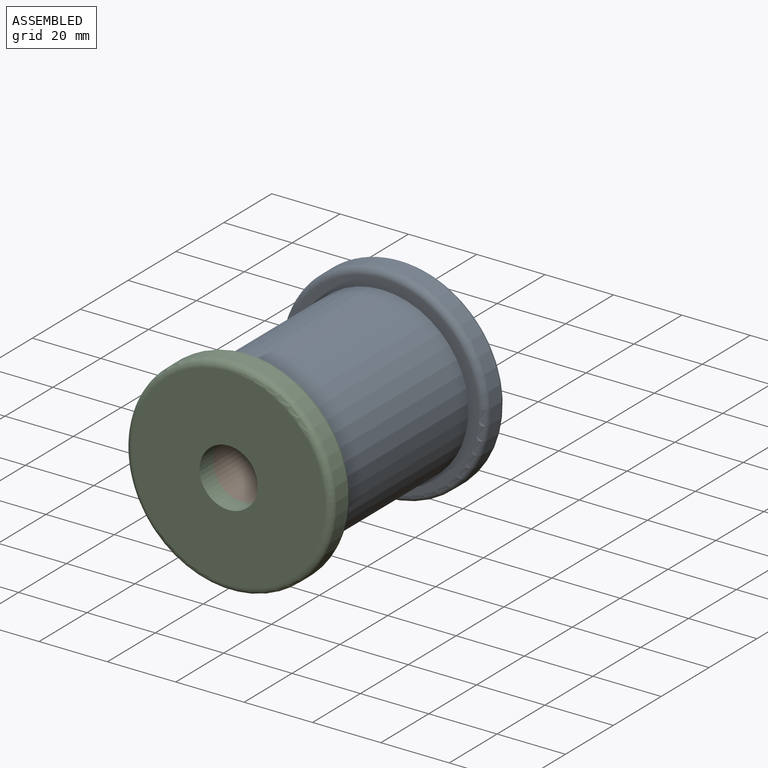
[diagram: assembled view]
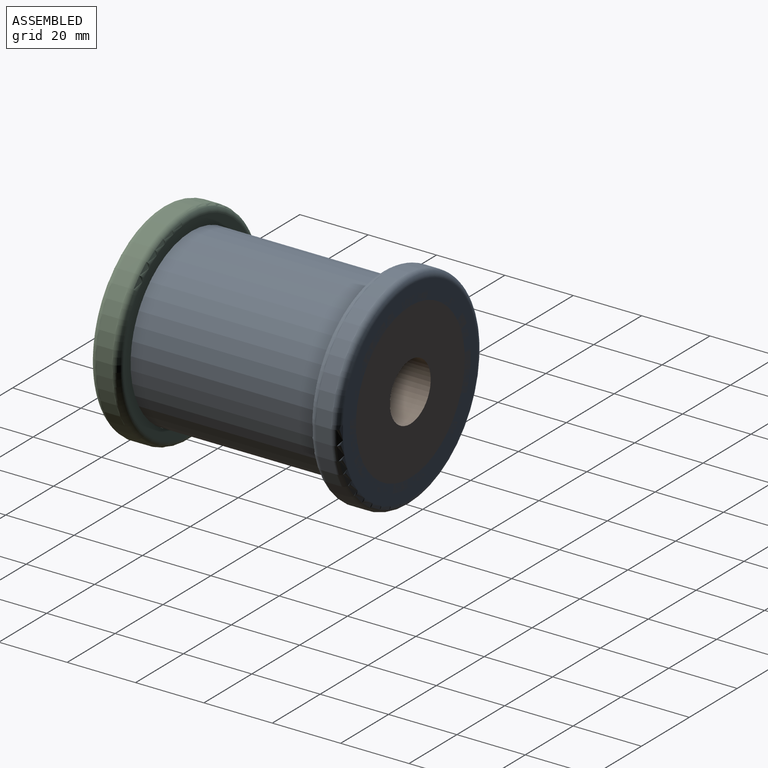
[diagram: assembled view, second angle]
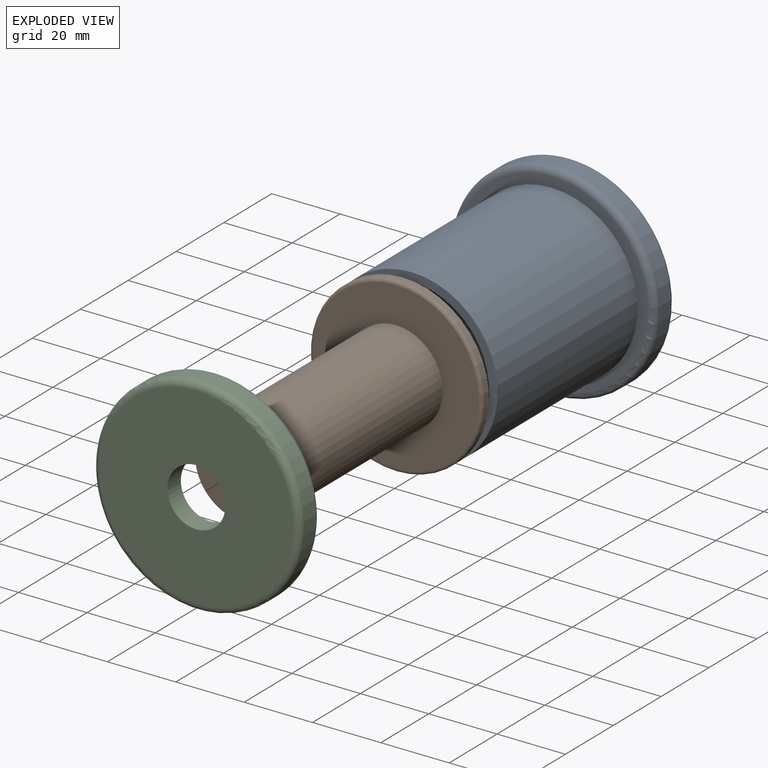
[diagram: exploded view]
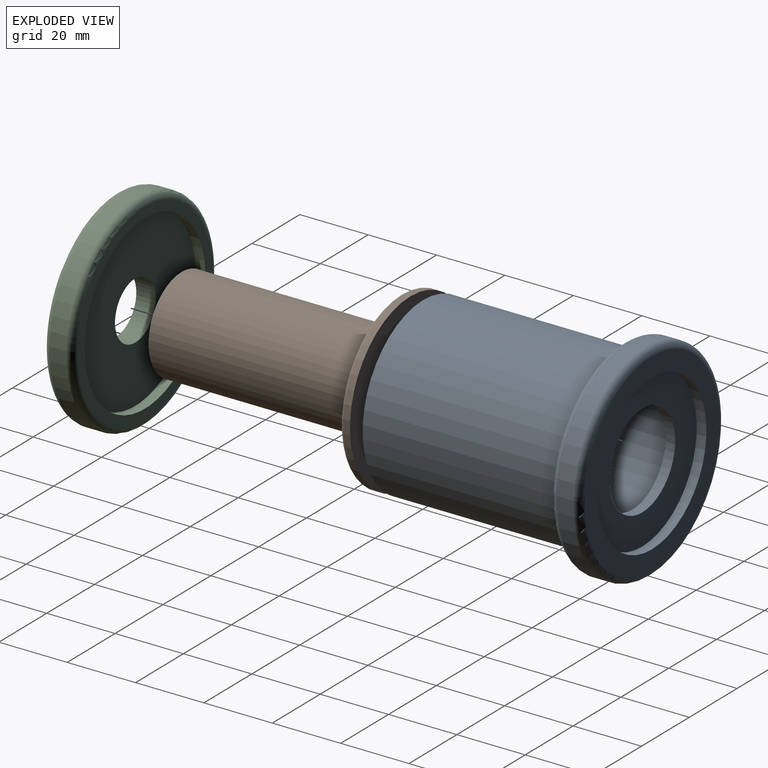
[diagram: exploded view, second angle]
ASSEMBLY  parts=3 mates=2
PART A: 16 faces, bbox 65.5x67x65.5 mm
  f0: plane 15x2.5mm, normal (0,0,1), area 37.5mm2, adj f9,f10,f12,f13
  f1: plane 15x2.5mm, normal (0,0,-1), area 37.5mm2, adj f9,f10,f12,f13
  f2: plane 45.5x45.5mm, normal (0,-1,0), area 1032mm2, adj f7,f10
  f3: plane 45.5x45.5mm, normal (0,1,0), area 1032mm2, adj f7,f8
  f4: cylinder r=30.25mm len=60.5mm, axis (0,1,0), area 855.3mm2, adj f14,f15
  f5: plane 56.5x56.5mm, normal (0,-1,0), area 504.2mm2, adj f9,f15
  f6: plane 56.5x56.5mm, normal (0,1,0), area 881.2mm2, adj f8,f14
  f7: cylinder r=13.75mm len=27.5mm, axis (0,1,0), area 244.8mm2, adj f2,f3
  f8: cylinder r=22.75mm len=45.5mm, axis (0,1,0), area 405mm2, adj f3,f6
  f9: cylinder r=25.25mm len=58.5mm, axis (0,1,0), area 9258.5mm2, adj f0,f1,f5,f11,f12,f13
  f10: cylinder r=22.75mm len=61.33mm, axis (0,1,0), area 8744.6mm2, adj f0,f1,f2,f11,f12,f13
  f11: plane 50.5x50.5mm, normal (0,-1,0), area 377mm2, adj f9,f10
  f12: plane 2.51x1.5mm, normal (0,-1,0), area 3.8mm2, adj f0,f1,f9,f10
  f13: plane 2.51x1.5mm, normal (0,1,0), area 3.8mm2, adj f0,f1,f9,f10
  f14: torus R=28.25mm, axis (0,-1,0), area 582.8mm2, adj f4,f6
  f15: torus R=28.25mm, axis (0,-1,0), area 582.8mm2, adj f4,f5
PART B: 11 faces, bbox 54.7x67x54.7 mm
  f0: plane 15x5.26mm, normal (0,0,1), area 78.9mm2, adj f3,f6,f8,f9
  f1: plane 15x5.26mm, normal (0,0,-1), area 78.9mm2, adj f3,f6,f8,f9
  f2: cylinder r=25.25mm len=50.5mm, axis (0,1,0), area 290.9mm2, adj f5,f10
  f3: cylinder r=8.5mm len=67mm, axis (0,1,0), area 3555.7mm2, adj f0,f1,f5,f7,f8,f9
  f4: plane 48.5x48.5mm, normal (0,-1,0), area 1253.5mm2, adj f6,f10
  f5: plane 50.5x50.5mm, normal (0,1,0), area 1776mm2, adj f2,f3
  f6: cylinder r=13.75mm len=64.17mm, axis (0,1,0), area 5521.1mm2, adj f0,f1,f4,f7,f8,f9
  f7: plane 27.5x27.5mm, normal (0,-1,0), area 367mm2, adj f3,f6
  f8: plane 5.28x1.5mm, normal (0,-1,0), area 7.9mm2, adj f0,f1,f3,f6
  f9: plane 5.28x1.5mm, normal (0,1,0), area 7.9mm2, adj f0,f1,f3,f6
  f10: torus R=24.25mm, axis (0,-1,0), area 245.6mm2, adj f2,f4
PART C: 8 faces, bbox 65.5x8.5x65.5 mm
  f0: cylinder r=25.25mm len=50.5mm, axis (0,1,0), area 449.5mm2, adj f2,f5
  f1: cylinder r=30.25mm len=60.5mm, axis (0,1,0), area 855.3mm2, adj f6,f7
  f2: plane 56.5x56.5mm, normal (0,-1,0), area 504.2mm2, adj f0,f7
  f3: plane 56.5x56.5mm, normal (0,1,0), area 2280.2mm2, adj f4,f6
  f4: cylinder r=8.5mm len=17mm, axis (0,1,0), area 302.6mm2, adj f3,f5
  f5: plane 50.5x50.5mm, normal (0,-1,0), area 1776mm2, adj f0,f4
  f6: torus R=28.25mm, axis (0,-1,0), area 582.8mm2, adj f1,f3
  f7: torus R=28.25mm, axis (0,-1,0), area 582.8mm2, adj f1,f2
PLACE A t=(3.24,18.65,42.35)mm
PLACE B t=(3.24,18.65,42.35)mm
PLACE C rot(axis=(-1,0,0),180deg) t=(3.24,-54.01,42.35)mm
MATE revolute B.f6 <-> A.f7  axis (0,-1,0) through (3.24,15.82,42.35)mm
MATE fastened B.f2 <-> C.f4  axis (0,-1,0) through (3.24,-48.35,42.35)mm
